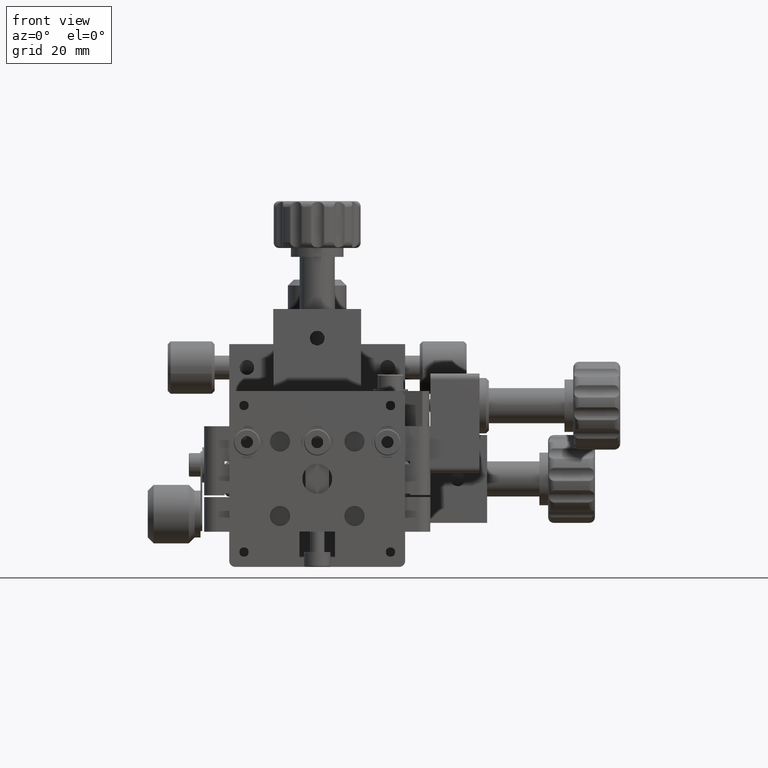
[diagram: clean part render]
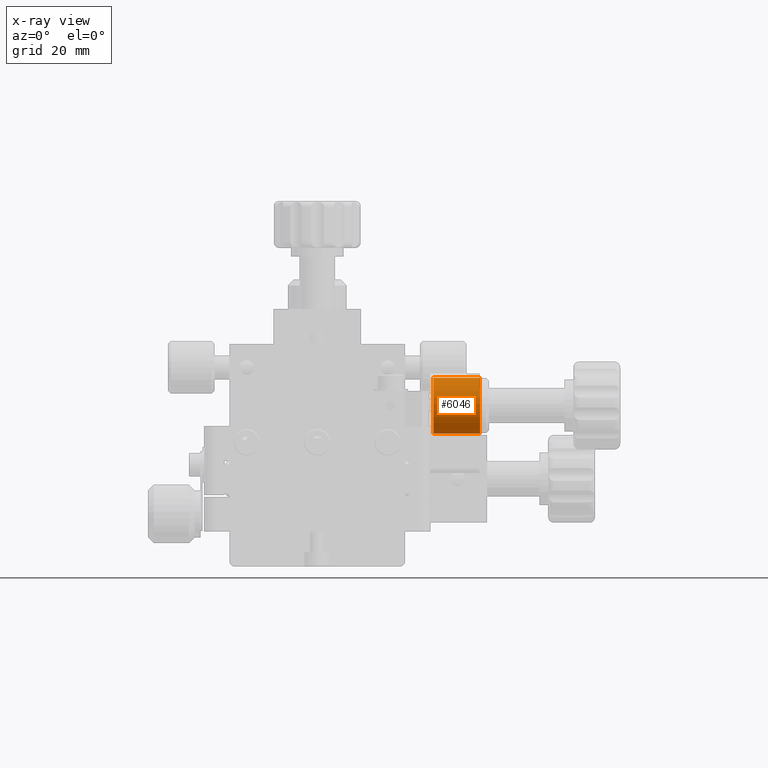
[diagram: x-ray — body ghosted, one internal face saturated and labeled with its STEP entity id]
A machine part, front view, then the same camera in x-ray: the body is ghosted and one INTERNAL B-rep face — a face not visible from any outside direction — is saturated and labeled: STEP entity #6046.
In plain terms, the highlighted cylindrical surface (bore or boss wall) has radius 4.75 mm, axis along (1, -0, 0).
Its self-contained STEP definition (entity closure, byte-faithful):
#279 = DIRECTION ( 'NONE',  ( 1.000000000000000000, -2.449293598294665492E-16, 7.528010651005102831E-30 ) ) ;
#675 = CARTESIAN_POINT ( 'NONE',  ( 19.79999999999999005, 12.50000000000000000, 12.49999999999999289 ) ) ;
#2752 = ORIENTED_EDGE ( 'NONE', *, *, #41224, .T. ) ;
#3609 = CIRCLE ( 'NONE', #78932, 4.749999999999998224 ) ;
#5243 = DIRECTION ( 'NONE',  ( 0.000000000000000000, -0.2973037729707400101, 0.9547829421273521522 ) ) ;
#6046 = ADVANCED_FACE ( 'NONE', ( #26945, #46432 ), #51752, .T. ) ;
#7094 = AXIS2_PLACEMENT_3D ( 'NONE', #71194, #76515, #20817 ) ;
#12028 = EDGE_LOOP ( 'NONE', ( #35907 ) ) ;
#12891 = DIRECTION ( 'NONE',  ( 0.000000000000000000, -0.2973037729707396770, 0.9547829421273522632 ) ) ;
#19284 = CIRCLE ( 'NONE', #49145, 4.749999999999997335 ) ;
#20817 = DIRECTION ( 'NONE',  ( 0.000000000000000000, 0.2973037729707396770, -0.9547829421273522632 ) ) ;
#26945 = FACE_OUTER_BOUND ( 'NONE', #73407, .T. ) ;
#35907 = ORIENTED_EDGE ( 'NONE', *, *, #56281, .T. ) ;
#39806 = VERTEX_POINT ( 'NONE', #44023 ) ;
#41224 = EDGE_CURVE ( 'NONE', #59491, #59491, #19284, .T. ) ;
#44023 = CARTESIAN_POINT ( 'NONE',  ( 27.79999999999999005, 11.08780707838898394, 17.03521897510491456 ) ) ;
#46432 = FACE_OUTER_BOUND ( 'NONE', #12028, .T. ) ;
#47567 = CARTESIAN_POINT ( 'NONE',  ( 27.79999999999999005, 12.49999999999999822, 12.49999999999999289 ) ) ;
#47979 = DIRECTION ( 'NONE',  ( -1.000000000000000000, 2.449293598294665492E-16, -7.528010651005102831E-30 ) ) ;
#49145 = AXIS2_PLACEMENT_3D ( 'NONE', #675, #279, #12891 ) ;
#51752 = CYLINDRICAL_SURFACE ( 'NONE', #7094, 4.749999999999997335 ) ;
#52204 = CARTESIAN_POINT ( 'NONE',  ( 19.79999999999999005, 11.08780707838898749, 17.03521897510491456 ) ) ;
#56281 = EDGE_CURVE ( 'NONE', #39806, #39806, #3609, .T. ) ;
#59491 = VERTEX_POINT ( 'NONE', #52204 ) ;
#71194 = CARTESIAN_POINT ( 'NONE',  ( 19.29999999999999005, 12.50000000000000000, 12.49999999999999289 ) ) ;
#73407 = EDGE_LOOP ( 'NONE', ( #2752 ) ) ;
#76515 = DIRECTION ( 'NONE',  ( 1.000000000000000000, -2.449293598294665492E-16, 7.528010651005102831E-30 ) ) ;
#78932 = AXIS2_PLACEMENT_3D ( 'NONE', #47567, #47979, #5243 ) ;